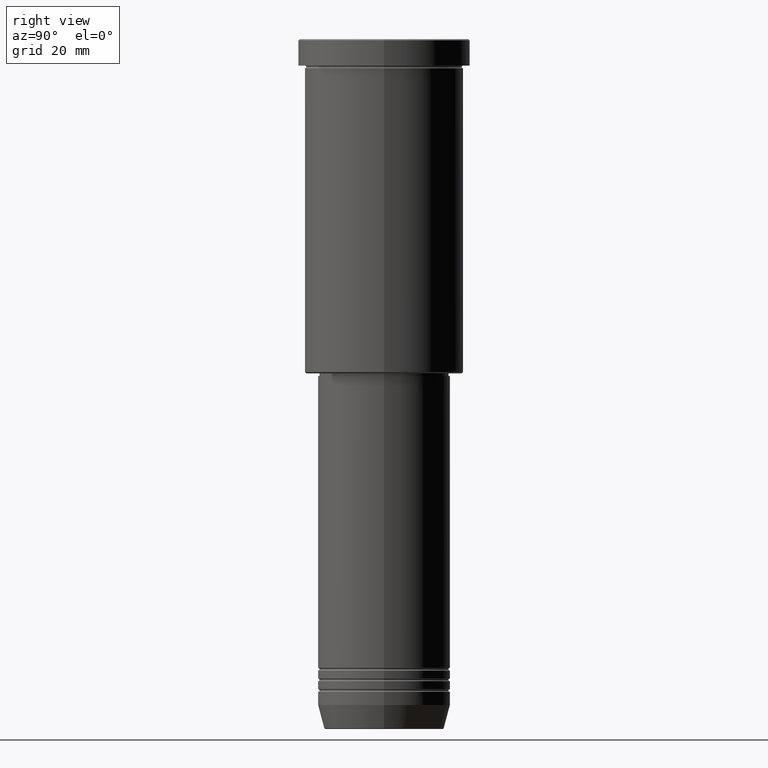
[diagram: clean part render]
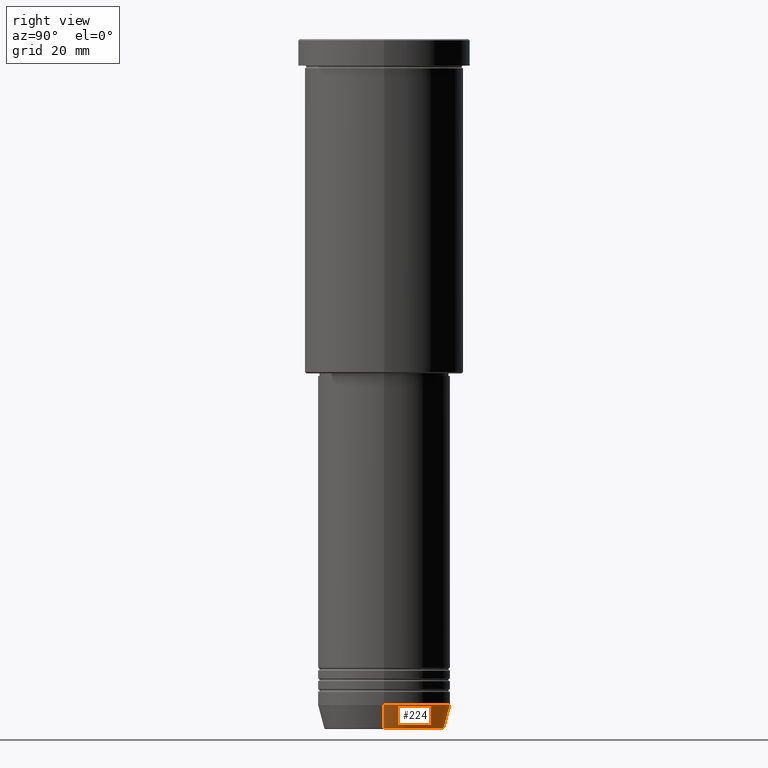
[diagram: same view with one face highlighted and labeled with its STEP entity id]
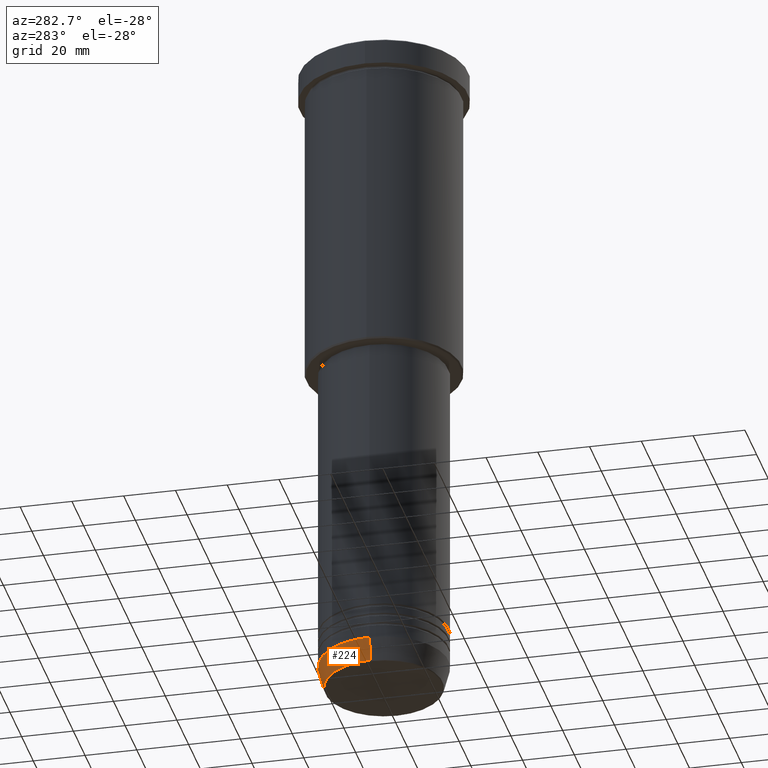
[diagram: same view with one face highlighted and labeled with its STEP entity id]
A machine part, right view. The second image highlights one B-rep face of the part: STEP entity #224.
A second angle (auxiliary view) of the same face is appended — the face is thin or edge-on in the first view.
In plain terms, the highlighted conical surface has half-angle 15 deg.
Its self-contained STEP definition (entity closure, byte-faithful):
#56 = CIRCLE ( 'NONE', #750, 25.00000000000000000 ) ;
#85 = AXIS2_PLACEMENT_3D ( 'NONE', #883, #1133, #212 ) ;
#129 = LINE ( 'NONE', #615, #300 ) ;
#134 = CARTESIAN_POINT ( 'NONE',  ( 0.000000000000000000, 0.000000000000000000, -259.6294095225512706 ) ) ;
#167 = AXIS2_PLACEMENT_3D ( 'NONE', #134, #404, #954 ) ;
#212 = DIRECTION ( 'NONE',  ( 1.000000000000000000, 0.000000000000000000, 0.000000000000000000 ) ) ;
#219 = DIRECTION ( 'NONE',  ( 1.000000000000000000, 0.000000000000000000, 0.000000000000000000 ) ) ;
#223 = DIRECTION ( 'NONE',  ( -0.000000000000000000, -0.000000000000000000, 1.000000000000000000 ) ) ;
#224 = ADVANCED_FACE ( 'NONE', ( #874 ), #1120, .T. ) ;
#300 = VECTOR ( 'NONE', #518, 1000.000000000000114 ) ;
#345 = DIRECTION ( 'NONE',  ( -0.2588190451025215166, 3.169619151431774802E-17, 0.9659258262890679791 ) ) ;
#381 = CIRCLE ( 'NONE', #167, 22.68775668727494477 ) ;
#388 = ORIENTED_EDGE ( 'NONE', *, *, #1071, .F. ) ;
#403 = VERTEX_POINT ( 'NONE', #1092 ) ;
#404 = DIRECTION ( 'NONE',  ( -0.000000000000000000, -0.000000000000000000, 1.000000000000000000 ) ) ;
#419 = VERTEX_POINT ( 'NONE', #803 ) ;
#518 = DIRECTION ( 'NONE',  ( 0.2588190451025215166, 0.000000000000000000, 0.9659258262890679791 ) ) ;
#532 = ORIENTED_EDGE ( 'NONE', *, *, #778, .T. ) ;
#615 = CARTESIAN_POINT ( 'NONE',  ( 25.00000000000000000, 0.000000000000000000, -251.0000000000000000 ) ) ;
#750 = AXIS2_PLACEMENT_3D ( 'NONE', #1048, #223, #219 ) ;
#778 = EDGE_CURVE ( 'NONE', #951, #403, #994, .T. ) ;
#803 = CARTESIAN_POINT ( 'NONE',  ( 25.00000000000000000, 0.000000000000000000, -251.0000000000000000 ) ) ;
#874 = FACE_OUTER_BOUND ( 'NONE', #1088, .T. ) ;
#883 = CARTESIAN_POINT ( 'NONE',  ( 0.000000000000000000, 0.000000000000000000, -251.0000000000000000 ) ) ;
#914 = ORIENTED_EDGE ( 'NONE', *, *, #1056, .T. ) ;
#923 = ORIENTED_EDGE ( 'NONE', *, *, #1144, .F. ) ;
#951 = VERTEX_POINT ( 'NONE', #1105 ) ;
#954 = DIRECTION ( 'NONE',  ( 1.000000000000000000, 0.000000000000000000, 0.000000000000000000 ) ) ;
#990 = VERTEX_POINT ( 'NONE', #1110 ) ;
#994 = LINE ( 'NONE', #1007, #1177 ) ;
#1007 = CARTESIAN_POINT ( 'NONE',  ( -25.00000000000000000, 3.061616997868383043E-15, -251.0000000000000000 ) ) ;
#1048 = CARTESIAN_POINT ( 'NONE',  ( 0.000000000000000000, 0.000000000000000000, -251.0000000000000000 ) ) ;
#1056 = EDGE_CURVE ( 'NONE', #990, #951, #381, .T. ) ;
#1071 = EDGE_CURVE ( 'NONE', #990, #419, #129, .T. ) ;
#1088 = EDGE_LOOP ( 'NONE', ( #914, #532, #923, #388 ) ) ;
#1092 = CARTESIAN_POINT ( 'NONE',  ( -25.00000000000000000, 3.061616997868383043E-15, -251.0000000000000000 ) ) ;
#1105 = CARTESIAN_POINT ( 'NONE',  ( -22.68775668727494477, 2.920032929279452581E-15, -259.6294095225512706 ) ) ;
#1110 = CARTESIAN_POINT ( 'NONE',  ( 22.68775668727494477, 0.000000000000000000, -259.6294095225512706 ) ) ;
#1120 = CONICAL_SURFACE ( 'NONE', #85, 25.00000000000000000, 0.2617993877991502960 ) ;
#1133 = DIRECTION ( 'NONE',  ( -0.000000000000000000, -0.000000000000000000, 1.000000000000000000 ) ) ;
#1144 = EDGE_CURVE ( 'NONE', #419, #403, #56, .T. ) ;
#1177 = VECTOR ( 'NONE', #345, 1000.000000000000114 ) ;